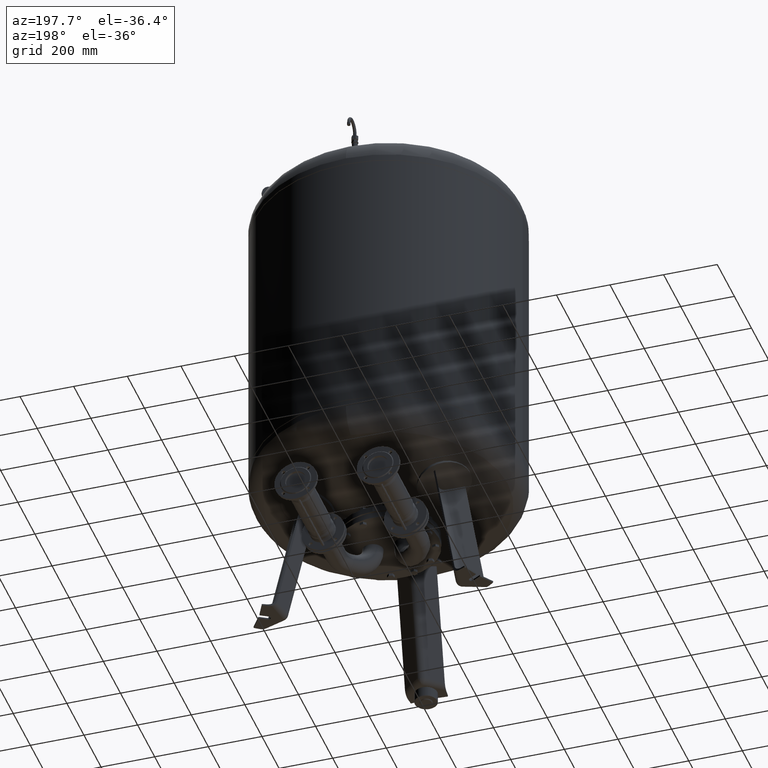
[diagram: clean part render]
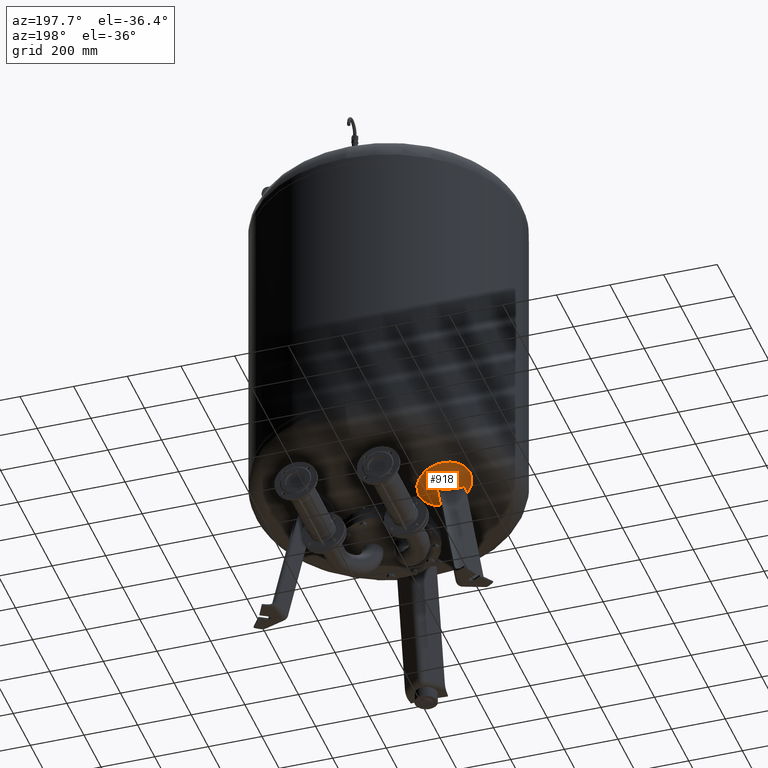
[diagram: same view with one face highlighted and labeled with its STEP entity id]
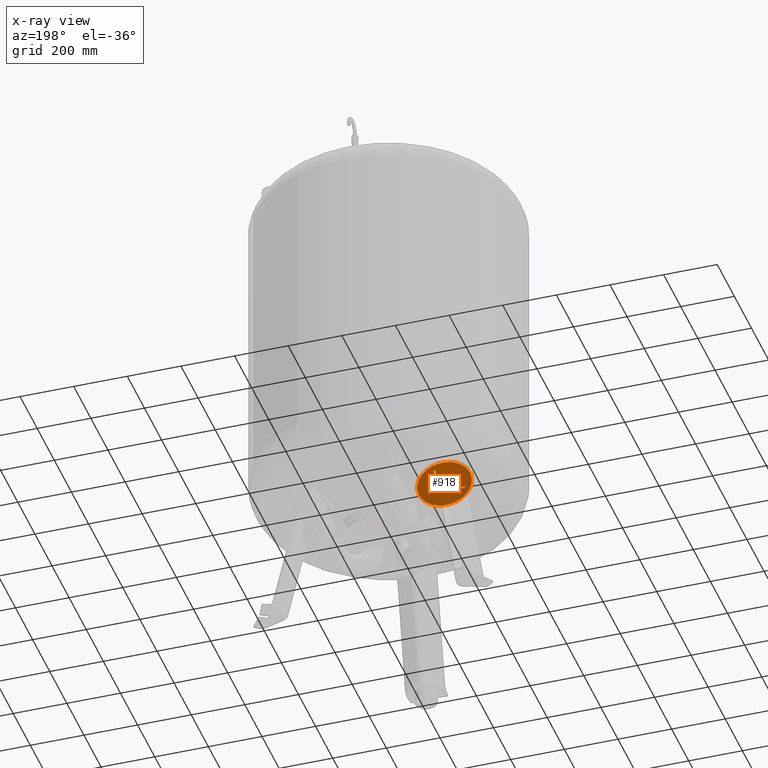
[diagram: x-ray of the same camera — body ghosted, the highlighted face saturated]
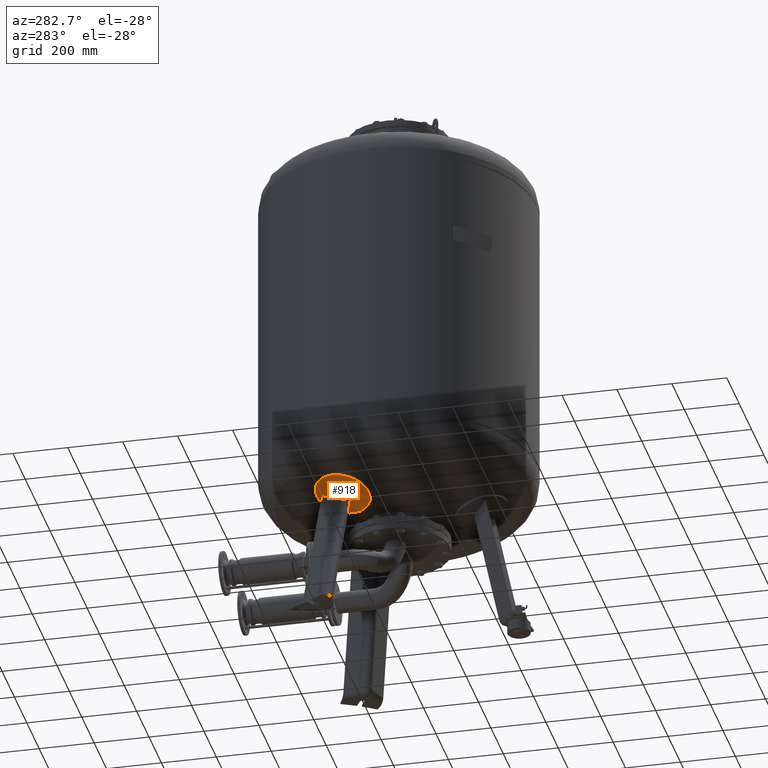
[diagram: same view with one face highlighted and labeled with its STEP entity id]
A machine part, auxiliary view. The second image highlights one B-rep face of the part: STEP entity #918.
The next image is the same camera in x-ray: the body ghosted, the highlighted face saturated — about 0% of this face is hidden behind the body in this view.
A second angle (auxiliary view) of the same face is appended — the face is thin or edge-on in the first view.
In plain terms, the highlighted spherical surface has radius 1006 mm.
Its self-contained STEP definition (entity closure, byte-faithful):
#130=CARTESIAN_POINT('',(-172.796675749824570,99.764207259233743,469.158360530759300));
#131=VERTEX_POINT('',#130);
#140=CARTESIAN_POINT('',(-337.524496459090810,194.869858888749210,530.961759405748920));
#141=VERTEX_POINT('',#140);
#142=CARTESIAN_POINT('',(-255.160586104457790,147.317033073991520,500.060059968254170));
#143=DIRECTION('',(-0.267616567329818,0.154508497187474,-0.951056516295154));
#144=DIRECTION('',(0.823639103546332,-0.475528258147577,-0.309016994374948));
#145=AXIS2_PLACEMENT_3D('',#142,#143,#144);
#146=CIRCLE('',#145,100.0);
#147=EDGE_CURVE('',#141,#131,#146,.T.);
#767=CARTESIAN_POINT('',(12.728276363151053,-7.348673784585287,1452.084259496684100));
#768=DIRECTION('',(-0.500000000000000,-0.866025403784438,-1.922271E-017));
#769=DIRECTION('',(0.823639103546332,-0.475528258147577,-0.309016994374948));
#770=AXIS2_PLACEMENT_3D('',#767,#768,#769);
#771=SPHERICAL_SURFACE('',#770,1006.0);
#772=CARTESIAN_POINT('',(-255.160586104457790,147.317033073991520,500.060059968254170));
#773=DIRECTION('',(-0.267616567329818,0.154508497187474,-0.951056516295154));
#774=DIRECTION('',(0.823639103546332,-0.475528258147577,-0.309016994374948));
#775=AXIS2_PLACEMENT_3D('',#772,#773,#774);
#776=CIRCLE('',#775,100.0);
#777=EDGE_CURVE('',#131,#141,#776,.T.);
#778=ORIENTED_EDGE('',*,*,#777,.T.);
#779=ORIENTED_EDGE('',*,*,#147,.T.);
#780=EDGE_LOOP('',(#778,#779));
#781=FACE_OUTER_BOUND('',#780,.T.);
#782=CARTESIAN_POINT('',(-245.347396508302890,225.757308699770050,508.106215259451630));
#783=VERTEX_POINT('',#782);
#784=CARTESIAN_POINT('',(-239.084562163770560,222.906025895211800,505.718015578199410));
#785=VERTEX_POINT('',#784);
#786=CARTESIAN_POINT('',(48.462833693314110,69.785539066318449,1453.703955797395800));
#787=DIRECTION('',(-0.420282416002408,-0.907193365623647,-0.019049623818306));
#788=DIRECTION('',(0.009563295541659,0.016564113765950,-0.999817070025078));
#789=AXIS2_PLACEMENT_3D('',#786,#787,#788);
#790=CIRCLE('',#789,1002.400484439319300);
#791=EDGE_CURVE('',#783,#785,#790,.T.);
#792=ORIENTED_EDGE('',*,*,#791,.F.);
#793=CARTESIAN_POINT('',(-234.534818756953260,154.041509200619940,490.392952149244080));
#794=VERTEX_POINT('',#793);
#795=CARTESIAN_POINT('',(-42.678741161069695,-17.943416016653856,1461.157558058853700));
#796=DIRECTION('',(0.969740897595359,0.185430570007244,-0.158802063077708));
#797=DIRECTION('',(0.180056805991956,-0.103955845408880,0.978147600733806));
#798=AXIS2_PLACEMENT_3D('',#795,#796,#797);
#799=CIRCLE('',#798,1004.376169121564000);
#800=EDGE_CURVE('',#794,#783,#799,.T.);
#801=ORIENTED_EDGE('',*,*,#800,.F.);
#802=CARTESIAN_POINT('',(-250.671269583507780,126.092356515190690,490.392952149244080));
#803=VERTEX_POINT('',#802);
#804=CARTESIAN_POINT('',(-250.671269583507780,126.092356515190690,490.392952149244080));
#805=CARTESIAN_POINT('',(-250.574512849431730,126.129635010904830,490.371623892671440));
#806=CARTESIAN_POINT('',(-250.477803760298170,126.167593311050510,490.350420493468330));
#807=CARTESIAN_POINT('',(-249.646487369690670,126.499951411326860,490.169148601515130));
#808=CARTESIAN_POINT('',(-248.915641114720240,126.833074850677950,490.016489016976440));
#809=CARTESIAN_POINT('',(-247.476615436054460,127.576101824324380,489.730169035990510));
#810=CARTESIAN_POINT('',(-246.768360453599630,127.986039684162480,489.596492822823280));
#811=CARTESIAN_POINT('',(-245.388021940892120,128.877791467814260,489.351162059827520));
#812=CARTESIAN_POINT('',(-244.715937417980030,129.359603697571520,489.239506937421310));
#813=CARTESIAN_POINT('',(-243.419980240354050,130.387381409492890,489.040364541220580));
#814=CARTESIAN_POINT('',(-242.795522354690690,130.933811219726350,488.952787360993230));
#815=CARTESIAN_POINT('',(-241.604085802151620,132.081845711851540,488.802955942629920));
#816=CARTESIAN_POINT('',(-241.037108603185290,132.683452004905350,488.740702376916890));
#817=CARTESIAN_POINT('',(-239.968940744643500,133.929592684317070,488.641866930361120));
#818=CARTESIAN_POINT('',(-239.467698051638390,134.574194484351320,488.605281330539300));
#819=CARTESIAN_POINT('',(-238.536808190789370,135.892067462273190,488.557093949216380));
#820=CARTESIAN_POINT('',(-238.107165363452220,136.565341769891400,488.545493912186370));
#821=CARTESIAN_POINT('',(-237.714901647204190,137.244762456398800,488.545493912186370));
#822=CARTESIAN_POINT('',(-237.322637930956150,137.924183142906200,488.545493912186370));
#823=CARTESIAN_POINT('',(-236.954386690511940,138.632901899743050,488.557093949216380));
#824=CARTESIAN_POINT('',(-236.278520143095080,140.098012656324610,488.605281330539300));
#825=CARTESIAN_POINT('',(-235.970899955442800,140.854402461945450,488.641866930361120));
#826=CARTESIAN_POINT('',(-235.425794399653940,142.402533302654520,488.740702376916890));
#827=CARTESIAN_POINT('',(-235.188276666275930,143.194353106852820,488.802955942629920));
#828=CARTESIAN_POINT('',(-234.789767907944280,144.800184674411610,488.952787360993230));
#829=CARTESIAN_POINT('',(-234.628774753728660,145.614195972106360,489.040364541220580));
#830=CARTESIAN_POINT('',(-234.386671734574290,147.250416666107900,489.239506937421370));
#831=CARTESIAN_POINT('',(-234.305452365206550,148.073365051318720,489.351162059827520));
#832=CARTESIAN_POINT('',(-234.223341923047770,149.714649160971360,489.596492822823280));
#833=CARTESIAN_POINT('',(-234.222452813682390,150.532984898053140,489.730169035990630));
#834=CARTESIAN_POINT('',(-234.298485418140330,152.150731179299040,490.016489016976440));
#835=CARTESIAN_POINT('',(-234.375415184551660,152.950224322039790,490.169148601515020));
#836=CARTESIAN_POINT('',(-234.503242821862530,153.836344485026420,490.350420493468220));
#837=CARTESIAN_POINT('',(-234.518724514218550,153.939076163065810,490.371623892671440));
#838=CARTESIAN_POINT('',(-234.534818756953260,154.041509200619940,490.392952149244080));
#839=B_SPLINE_CURVE_WITH_KNOTS('',3,(#804,#805,#806,#807,#808,#809,#810,#811,#812,#813,#814,#815,#816,#817,#818,#819,#820,#821,#822,#823,#824,#825,#826,#827,#828,#829,#830,#831,#832,#833,#834,#835,#836,#837,#838),.UNSPECIFIED.,.F.,.U.,(4,2,2,2,2,2,2,2,3,2,2,2,2,2,2,2,4),(-16.784681571035506,-16.475076082417758,-14.121493784929527,-11.767911487441268,-9.414329189953008,-7.060746892464749,-4.707164594976490,-2.353582297488259,0.0,2.353582297488253,4.707164594976506,7.060746892464759,9.414329189953012,11.767911487441264,14.121493784929518,16.475076082417772,16.784681571035524),.UNSPECIFIED.);
#840=EDGE_CURVE('',#803,#794,#839,.T.);
#841=ORIENTED_EDGE('',*,*,#840,.F.);
#842=CARTESIAN_POINT('',(-318.185262678157870,99.598423778678836,508.106215259451630));
#843=VERTEX_POINT('',#842);
#844=CARTESIAN_POINT('',(-5.799916479440128,45.932582055353635,1461.157558058853700));
#845=DIRECTION('',(0.324282864533177,-0.932535537409927,-0.158802063077709));
#846=DIRECTION('',(0.180056805991956,-0.103955845408880,0.978147600733805));
#847=AXIS2_PLACEMENT_3D('',#844,#845,#846);
#848=CIRCLE('',#847,1004.376169121563900);
#849=EDGE_CURVE('',#843,#803,#848,.T.);
#850=ORIENTED_EDGE('',*,*,#849,.F.);
#851=CARTESIAN_POINT('',(-312.584562163770560,95.600291538899285,505.718015578199190));
#852=VERTEX_POINT('',#851);
#853=CARTESIAN_POINT('',(-36.204632801566277,-76.862814650949900,1453.703955797395800));
#854=DIRECTION('',(0.575511292773579,0.817571931833808,-0.019049623818306));
#855=DIRECTION('',(0.009563295541659,0.016564113765950,0.999817070025078));
#856=AXIS2_PLACEMENT_3D('',#853,#854,#855);
#857=CIRCLE('',#856,1002.400484439319300);
#858=EDGE_CURVE('',#852,#843,#857,.T.);
#859=ORIENTED_EDGE('',*,*,#858,.F.);
#860=CARTESIAN_POINT('',(-244.219129764969780,122.367211854108690,488.140371349142640));
#861=VERTEX_POINT('',#860);
#862=CARTESIAN_POINT('',(-3.878909333608078,40.408369625302441,1460.216836450315200));
#863=DIRECTION('',(-0.324282864533177,0.932535537409927,0.158802063077709));
#864=DIRECTION('',(-0.180056805991956,0.103955845408880,-0.978147600733805));
#865=AXIS2_PLACEMENT_3D('',#862,#863,#864);
#866=CIRCLE('',#865,1004.695639176399000);
#867=EDGE_CURVE('',#861,#852,#866,.T.);
#868=ORIENTED_EDGE('',*,*,#867,.F.);
#869=CARTESIAN_POINT('',(-228.082678938415310,150.316364539538000,488.140371349142640));
#870=VERTEX_POINT('',#869);
#871=CARTESIAN_POINT('',(-228.082678938415310,150.316364539538000,488.140371349142640));
#872=CARTESIAN_POINT('',(-228.066640468310650,150.214835707756690,488.119758337632730));
#873=CARTESIAN_POINT('',(-228.051203789349190,150.113014788072180,488.099264993121150));
#874=CARTESIAN_POINT('',(-227.922557904223540,149.227132373110520,487.922527930590210));
#875=CARTESIAN_POINT('',(-227.844838707869460,148.426996874095810,487.773524823873860));
#876=CARTESIAN_POINT('',(-227.767358921597380,146.808052609605060,487.494072222439000));
#877=CARTESIAN_POINT('',(-227.767590168543650,145.989161230529360,487.363607291874300));
#878=CARTESIAN_POINT('',(-227.848518487504630,144.346861174114850,487.124177053163460));
#879=CARTESIAN_POINT('',(-227.929213570494740,143.523452480935130,487.015211181380040));
#880=CARTESIAN_POINT('',(-228.170400469165940,141.886410818826620,486.820870060878350));
#881=CARTESIAN_POINT('',(-228.331001211407280,141.072039463819290,486.735407184319850));
#882=CARTESIAN_POINT('',(-228.728852706424140,139.465588881136060,486.589196233214520));
#883=CARTESIAN_POINT('',(-228.966105582964930,138.673510119873410,486.528448813028320));
#884=CARTESIAN_POINT('',(-229.510802448659690,137.124959111482780,486.432006304194660));
#885=CARTESIAN_POINT('',(-229.818278733375110,136.368408226318930,486.396307595334520));
#886=CARTESIAN_POINT('',(-230.493968779616320,134.903066767972920,486.349288981572390));
#887=CARTESIAN_POINT('',(-230.862187432638880,134.194278395694770,486.337970779564160));
#888=CARTESIAN_POINT('',(-231.254467641075590,133.514829143878670,486.337970779564160));
#889=CARTESIAN_POINT('',(-231.646747849512310,132.835379892062580,486.337970779564160));
#890=CARTESIAN_POINT('',(-232.076467259300930,132.162098998258670,486.349288981572390));
#891=CARTESIAN_POINT('',(-233.007645164326500,130.844263523956500,486.396307595334520));
#892=CARTESIAN_POINT('',(-233.509099307776410,130.199705807749840,486.432006304194540));
#893=CARTESIAN_POINT('',(-234.577835387251180,128.953708980501030,486.528448813028210));
#894=CARTESIAN_POINT('',(-235.145169278032370,128.352202581664440,486.589196233214520));
#895=CARTESIAN_POINT('',(-236.337470545051930,127.204427788704650,486.735407184319850));
#896=CARTESIAN_POINT('',(-236.962436455481910,126.658157788553280,486.820870060878290));
#897=CARTESIAN_POINT('',(-238.259562672585760,125.630762976189790,487.015211181379980));
#898=CARTESIAN_POINT('',(-238.932307977081390,125.149174637770100,487.124177053163520));
#899=CARTESIAN_POINT('',(-240.314117387092440,124.257938629457060,487.363607291874360));
#900=CARTESIAN_POINT('',(-241.023182500838910,123.848292674189180,487.494072222438890));
#901=CARTESIAN_POINT('',(-242.463969254335070,123.105920005135190,487.773524823873860));
#902=CARTESIAN_POINT('',(-243.195766521128630,122.773159054032160,487.922527930590210));
#903=CARTESIAN_POINT('',(-244.027286139814120,122.441628451162490,488.099264993121150));
#904=CARTESIAN_POINT('',(-244.123183982378320,122.404086547450850,488.119758337632730));
#905=CARTESIAN_POINT('',(-244.219129764969780,122.367211854108690,488.140371349142640));
#906=B_SPLINE_CURVE_WITH_KNOTS('',3,(#871,#872,#873,#874,#875,#876,#877,#878,#879,#880,#881,#882,#883,#884,#885,#886,#887,#888,#889,#890,#891,#892,#893,#894,#895,#896,#897,#898,#899,#900,#901,#902,#903,#904,#905),.UNSPECIFIED.,.F.,.U.,(4,2,2,2,2,2,2,2,3,2,2,2,2,2,2,2,4),(-16.782365627384145,-16.475768754341857,-14.122087503721616,-11.768406253101347,-9.414725002481077,-7.061043751860808,-4.707362501240539,-2.353681250620269,0.0,2.353681250620262,4.707362501240525,7.061043751860787,9.414725002481049,11.768406253101311,14.122087503721573,16.475768754341836,16.782365627384028),.UNSPECIFIED.);
#907=EDGE_CURVE('',#870,#861,#906,.T.);
#908=ORIENTED_EDGE('',*,*,#907,.F.);
#909=CARTESIAN_POINT('',(-36.934129287827602,-16.844950790770241,1460.216836450315200));
#910=DIRECTION('',(-0.969740897595359,-0.185430570007244,0.158802063077709));
#911=DIRECTION('',(-0.180056805991956,0.103955845408880,-0.978147600733806));
#912=AXIS2_PLACEMENT_3D('',#909,#910,#911);
#913=CIRCLE('',#912,1004.695639176398800);
#914=EDGE_CURVE('',#785,#870,#913,.T.);
#915=ORIENTED_EDGE('',*,*,#914,.F.);
#916=EDGE_LOOP('',(#792,#801,#841,#850,#859,#868,#908,#915));
#917=FACE_BOUND('',#916,.T.);
#918=ADVANCED_FACE('',(#781,#917),#771,.T.);